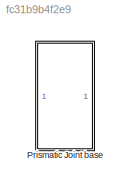
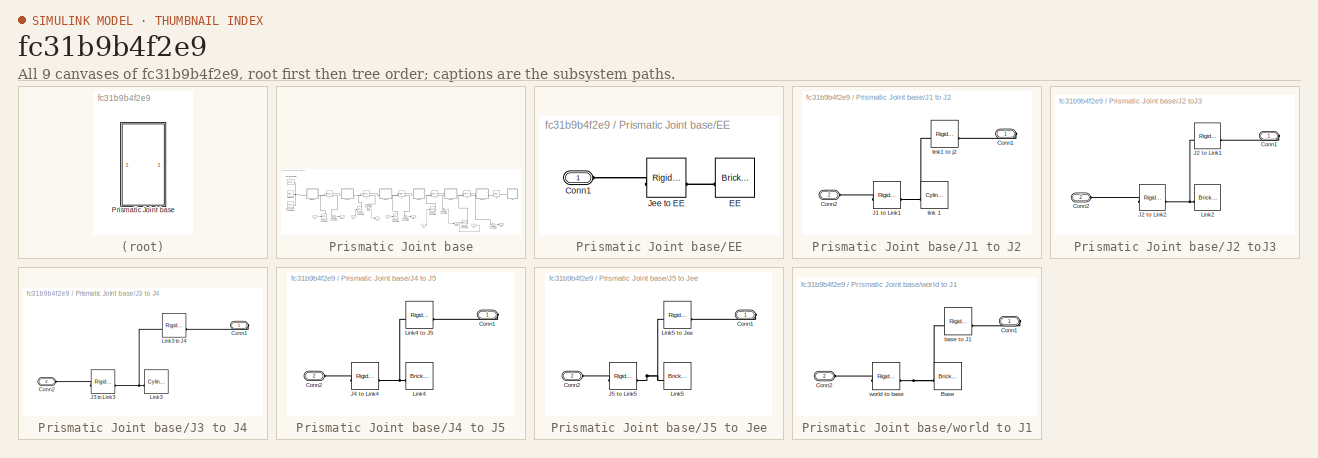
[diagram: thumbnail index - all 9 canvases of the model, root first then tree order]
MODEL slx_fc31b9b4f2e9
KIND model
CONFIG AbsTol = auto
CONFIG EnableMultiTasking = off
CONFIG FixedStep = auto
CONFIG MaxStep = auto
CONFIG MinStep = auto
CONFIG RelTol = 1e-3
CONFIG SampleTimeConstraint = Unconstrained
CONFIG SolverName = VariableStepAuto
CONFIG StartTime = 0.0
CONFIG StopTime = 0
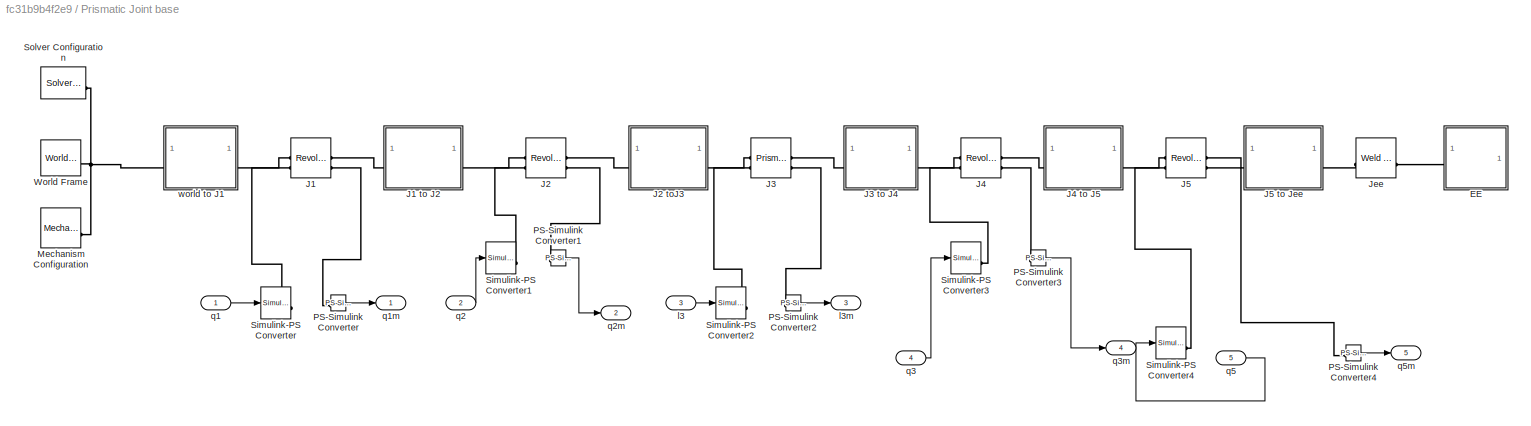
BLOCK [SubSystem] Prismatic Joint base
BLOCK [SubSystem] Prismatic Joint base/EE
BLOCK [PMIOPort] Prismatic Joint base/EE/Conn1
  Side = Left
BLOCK [Reference] Prismatic Joint base/EE/EE  REF=sm_lib/Body Elements/Brick Solid
  NameLocation = top
  SourceBlock = sm_lib/Body Elements/Brick Solid
  SourceType = Brick Solid
BLOCK [Reference] Prismatic Joint base/EE/Jee to EE  REF=sm_lib/Frames and
Transforms/Rigid
Transform
  SourceBlock = sm_lib/Frames and\nTransforms/Rigid\nTransform
  SourceType = Rigid\nTransform
BLOCK [Reference] Prismatic Joint base/J1  REF=sm_lib/Joints/Revolute Joint
  SourceBlock = sm_lib/Joints/Revolute Joint
  SourceType = Revolute Joint
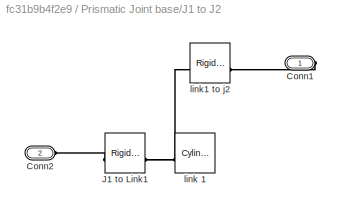
BLOCK [SubSystem] Prismatic Joint base/J1 to J2
BLOCK [PMIOPort] Prismatic Joint base/J1 to J2/Conn1
  Side = Right
BLOCK [PMIOPort] Prismatic Joint base/J1 to J2/Conn2
  Port = 2
  Side = Left
BLOCK [Reference] Prismatic Joint base/J1 to J2/J1 to Link1  REF=sm_lib/Frames and
Transforms/Rigid
Transform
  SourceBlock = sm_lib/Frames and\nTransforms/Rigid\nTransform
  SourceType = Rigid\nTransform
BLOCK [Reference] Prismatic Joint base/J1 to J2/link 1  REF=sm_lib/Body Elements/Cylindrical Solid
  NameLocation = top
  SourceBlock = sm_lib/Body Elements/Cylindrical Solid
  SourceType = Cylindrical Solid
BLOCK [Reference] Prismatic Joint base/J1 to J2/link1 to j2  REF=sm_lib/Frames and
Transforms/Rigid
Transform
  SourceBlock = sm_lib/Frames and\nTransforms/Rigid\nTransform
  SourceType = Rigid\nTransform
BLOCK [Reference] Prismatic Joint base/J2  REF=sm_lib/Joints/Revolute Joint
  SourceBlock = sm_lib/Joints/Revolute Joint
  SourceType = Revolute Joint
BLOCK [SubSystem] Prismatic Joint base/J2 toJ3
BLOCK [PMIOPort] Prismatic Joint base/J2 toJ3/Conn1
  Side = Right
BLOCK [PMIOPort] Prismatic Joint base/J2 toJ3/Conn2
  Port = 2
  Side = Left
BLOCK [Reference] Prismatic Joint base/J2 toJ3/J2 to Link1  REF=sm_lib/Frames and
Transforms/Rigid
Transform
  SourceBlock = sm_lib/Frames and\nTransforms/Rigid\nTransform
  SourceType = Rigid\nTransform
BLOCK [Reference] Prismatic Joint base/J2 toJ3/J2 to Link2  REF=sm_lib/Frames and
Transforms/Rigid
Transform
  SourceBlock = sm_lib/Frames and\nTransforms/Rigid\nTransform
  SourceType = Rigid\nTransform
BLOCK [Reference] Prismatic Joint base/J2 toJ3/Link2  REF=sm_lib/Body Elements/Brick Solid
  NameLocation = top
  SourceBlock = sm_lib/Body Elements/Brick Solid
  SourceType = Brick Solid
BLOCK [Reference] Prismatic Joint base/J3  REF=sm_lib/Joints/Prismatic
Joint
  SourceBlock = sm_lib/Joints/Prismatic\nJoint
  SourceType = Prismatic\nJoint
BLOCK [SubSystem] Prismatic Joint base/J3 to J4
BLOCK [PMIOPort] Prismatic Joint base/J3 to J4/Conn1
  Side = Right
BLOCK [PMIOPort] Prismatic Joint base/J3 to J4/Conn2
  Port = 2
  Side = Left
BLOCK [Reference] Prismatic Joint base/J3 to J4/J3 to Link3  REF=sm_lib/Frames and
Transforms/Rigid
Transform
  SourceBlock = sm_lib/Frames and\nTransforms/Rigid\nTransform
  SourceType = Rigid\nTransform
BLOCK [Reference] Prismatic Joint base/J3 to J4/Link3  REF=sm_lib/Body Elements/Cylindrical Solid
  NameLocation = top
  SourceBlock = sm_lib/Body Elements/Cylindrical Solid
  SourceType = Cylindrical Solid
BLOCK [Reference] Prismatic Joint base/J3 to J4/Link3 to J4  REF=sm_lib/Frames and
Transforms/Rigid
Transform
  SourceBlock = sm_lib/Frames and\nTransforms/Rigid\nTransform
  SourceType = Rigid\nTransform
BLOCK [Reference] Prismatic Joint base/J4  REF=sm_lib/Joints/Revolute Joint
  SourceBlock = sm_lib/Joints/Revolute Joint
  SourceType = Revolute Joint
BLOCK [SubSystem] Prismatic Joint base/J4 to J5
BLOCK [PMIOPort] Prismatic Joint base/J4 to J5/Conn1
  Side = Right
BLOCK [PMIOPort] Prismatic Joint base/J4 to J5/Conn2
  Port = 2
  Side = Left
BLOCK [Reference] Prismatic Joint base/J4 to J5/J4 to Link4  REF=sm_lib/Frames and
Transforms/Rigid
Transform
  SourceBlock = sm_lib/Frames and\nTransforms/Rigid\nTransform
  SourceType = Rigid\nTransform
BLOCK [Reference] Prismatic Joint base/J4 to J5/Link4  REF=sm_lib/Body Elements/Brick Solid
  NameLocation = top
  SourceBlock = sm_lib/Body Elements/Brick Solid
  SourceType = Brick Solid
BLOCK [Reference] Prismatic Joint base/J4 to J5/Link4 to J5  REF=sm_lib/Frames and
Transforms/Rigid
Transform
  SourceBlock = sm_lib/Frames and\nTransforms/Rigid\nTransform
  SourceType = Rigid\nTransform
BLOCK [Reference] Prismatic Joint base/J5  REF=sm_lib/Joints/Revolute Joint
  SourceBlock = sm_lib/Joints/Revolute Joint
  SourceType = Revolute Joint
BLOCK [SubSystem] Prismatic Joint base/J5 to Jee
BLOCK [PMIOPort] Prismatic Joint base/J5 to Jee/Conn1
  Side = Right
BLOCK [PMIOPort] Prismatic Joint base/J5 to Jee/Conn2
  Port = 2
  Side = Left
BLOCK [Reference] Prismatic Joint base/J5 to Jee/J5 to Link5  REF=sm_lib/Frames and
Transforms/Rigid
Transform
  SourceBlock = sm_lib/Frames and\nTransforms/Rigid\nTransform
  SourceType = Rigid\nTransform
BLOCK [Reference] Prismatic Joint base/J5 to Jee/Link5  REF=sm_lib/Body Elements/Brick Solid
  NameLocation = top
  SourceBlock = sm_lib/Body Elements/Brick Solid
  SourceType = Brick Solid
BLOCK [Reference] Prismatic Joint base/J5 to Jee/Link5 to Jee  REF=sm_lib/Frames and
Transforms/Rigid
Transform
  SourceBlock = sm_lib/Frames and\nTransforms/Rigid\nTransform
  SourceType = Rigid\nTransform
BLOCK [Reference] Prismatic Joint base/Jee  REF=sm_lib/Joints/Weld Joint
  SourceBlock = sm_lib/Joints/Weld Joint
  SourceType = Weld Joint
BLOCK [Reference] Prismatic Joint base/Mechanism Configuration  REF=sm_lib/Utilities/Mechanism
Configuration
  SourceBlock = sm_lib/Utilities/Mechanism\nConfiguration
  SourceType = Mechanism\nConfiguration
BLOCK [Reference] Prismatic Joint base/PS-Simulink Converter  REF=nesl_utility/PS-Simulink
Converter
  SourceBlock = nesl_utility/PS-Simulink\nConverter
  SourceType = PS-Simulink\nConverter
BLOCK [Reference] Prismatic Joint base/PS-Simulink Converter1  REF=nesl_utility/PS-Simulink
Converter
  SourceBlock = nesl_utility/PS-Simulink\nConverter
  SourceType = PS-Simulink\nConverter
BLOCK [Reference] Prismatic Joint base/PS-Simulink Converter2  REF=nesl_utility/PS-Simulink
Converter
  SourceBlock = nesl_utility/PS-Simulink\nConverter
  SourceType = PS-Simulink\nConverter
BLOCK [Reference] Prismatic Joint base/PS-Simulink Converter3  REF=nesl_utility/PS-Simulink
Converter
  SourceBlock = nesl_utility/PS-Simulink\nConverter
  SourceType = PS-Simulink\nConverter
BLOCK [Reference] Prismatic Joint base/PS-Simulink Converter4  REF=nesl_utility/PS-Simulink
Converter
  SourceBlock = nesl_utility/PS-Simulink\nConverter
  SourceType = PS-Simulink\nConverter
BLOCK [Reference] Prismatic Joint base/Simulink-PS Converter  REF=nesl_utility/Simulink-PS
Converter
  SourceBlock = nesl_utility/Simulink-PS\nConverter
  SourceType = Simulink-PS\nConverter
BLOCK [Reference] Prismatic Joint base/Simulink-PS Converter1  REF=nesl_utility/Simulink-PS
Converter
  SourceBlock = nesl_utility/Simulink-PS\nConverter
  SourceType = Simulink-PS\nConverter
BLOCK [Reference] Prismatic Joint base/Simulink-PS Converter2  REF=nesl_utility/Simulink-PS
Converter
  SourceBlock = nesl_utility/Simulink-PS\nConverter
  SourceType = Simulink-PS\nConverter
BLOCK [Reference] Prismatic Joint base/Simulink-PS Converter3  REF=nesl_utility/Simulink-PS
Converter
  SourceBlock = nesl_utility/Simulink-PS\nConverter
  SourceType = Simulink-PS\nConverter
BLOCK [Reference] Prismatic Joint base/Simulink-PS Converter4  REF=nesl_utility/Simulink-PS
Converter
  SourceBlock = nesl_utility/Simulink-PS\nConverter
  SourceType = Simulink-PS\nConverter
BLOCK [Reference] Prismatic Joint base/Solver Configuration  REF=nesl_utility/Solver
Configuration
  SourceBlock = nesl_utility/Solver\nConfiguration
  SourceType = Solver\nConfiguration
BLOCK [Reference] Prismatic Joint base/World Frame  REF=sm_lib/Frames and
Transforms/World Frame
  SourceBlock = sm_lib/Frames and\nTransforms/World Frame
  SourceType = World Frame
BLOCK [Inport] Prismatic Joint base/l3
  Port = 3
  Unit = m
BLOCK [Outport] Prismatic Joint base/l3m
  Port = 3
BLOCK [Inport] Prismatic Joint base/q1
  Unit = rad
BLOCK [Outport] Prismatic Joint base/q1m
BLOCK [Inport] Prismatic Joint base/q2
  Port = 2
  Unit = rad
BLOCK [Outport] Prismatic Joint base/q2m
  Port = 2
BLOCK [Inport] Prismatic Joint base/q3
  Port = 4
  Unit = rad
BLOCK [Outport] Prismatic Joint base/q3m
  Port = 4
BLOCK [Inport] Prismatic Joint base/q5
  Port = 5
  Unit = rad
BLOCK [Outport] Prismatic Joint base/q5m
  Port = 5
BLOCK [SubSystem] Prismatic Joint base/world to J1
BLOCK [Reference] Prismatic Joint base/world to J1/Base  REF=sm_lib/Body Elements/Brick Solid
  NameLocation = top
  SourceBlock = sm_lib/Body Elements/Brick Solid
  SourceType = Brick Solid
BLOCK [PMIOPort] Prismatic Joint base/world to J1/Conn1
  Side = Right
BLOCK [PMIOPort] Prismatic Joint base/world to J1/Conn2
  Port = 2
  Side = Left
BLOCK [Reference] Prismatic Joint base/world to J1/base to J1  REF=sm_lib/Frames and
Transforms/Rigid
Transform
  SourceBlock = sm_lib/Frames and\nTransforms/Rigid\nTransform
  SourceType = Rigid\nTransform
BLOCK [Reference] Prismatic Joint base/world to J1/world to base  REF=sm_lib/Frames and
Transforms/Rigid
Transform
  SourceBlock = sm_lib/Frames and\nTransforms/Rigid\nTransform
  SourceType = Rigid\nTransform
LINE Prismatic Joint base/PS-Simulink Converter1:1 -> Prismatic Joint base/q2m:1
LINE Prismatic Joint base/PS-Simulink Converter2:1 -> Prismatic Joint base/l3m:1
LINE Prismatic Joint base/PS-Simulink Converter3:1 -> Prismatic Joint base/q3m:1
LINE Prismatic Joint base/PS-Simulink Converter4:1 -> Prismatic Joint base/q5m:1
LINE Prismatic Joint base/PS-Simulink Converter:1 -> Prismatic Joint base/q1m:1
LINE Prismatic Joint base/l3:1 -> Prismatic Joint base/Simulink-PS Converter2:1
LINE Prismatic Joint base/q1:1 -> Prismatic Joint base/Simulink-PS Converter:1
LINE Prismatic Joint base/q2:1 -> Prismatic Joint base/Simulink-PS Converter1:1
LINE Prismatic Joint base/q3:1 -> Prismatic Joint base/Simulink-PS Converter3:1
LINE Prismatic Joint base/q5:1 -> Prismatic Joint base/Simulink-PS Converter4:1
PLINE Prismatic Joint base/EE/Conn1:RConn1 -- Prismatic Joint base/EE/Jee to EE:LConn1
PLINE Prismatic Joint base/EE/EE:RConn1 -- Prismatic Joint base/EE/Jee to EE:RConn1
PLINE Prismatic Joint base/EE:LConn1 -- Prismatic Joint base/Jee:RConn1
PLINE Prismatic Joint base/J1 to J2/Conn1:RConn1 -- Prismatic Joint base/J1 to J2/link1 to j2:RConn1
PLINE Prismatic Joint base/J1 to J2/Conn2:RConn1 -- Prismatic Joint base/J1 to J2/J1 to Link1:LConn1
PNET net1: Prismatic Joint base/J1 to J2/J1 to Link1:RConn1 -- Prismatic Joint base/J1 to J2/link 1:RConn1 -- Prismatic Joint base/J1 to J2/link1 to j2:LConn1
PLINE Prismatic Joint base/J1 to J2:LConn1 -- Prismatic Joint base/J1:RConn1
PLINE Prismatic Joint base/J1 to J2:RConn1 -- Prismatic Joint base/J2:LConn1
PLINE Prismatic Joint base/J1:LConn1 -- Prismatic Joint base/world to J1:RConn1
PLINE Prismatic Joint base/J1:LConn2 -- Prismatic Joint base/Simulink-PS Converter:RConn1
PLINE Prismatic Joint base/J1:RConn2 -- Prismatic Joint base/PS-Simulink Converter:LConn1
PLINE Prismatic Joint base/J2 toJ3/Conn1:RConn1 -- Prismatic Joint base/J2 toJ3/J2 to Link1:RConn1
PLINE Prismatic Joint base/J2 toJ3/Conn2:RConn1 -- Prismatic Joint base/J2 toJ3/J2 to Link2:LConn1
PNET net2: Prismatic Joint base/J2 toJ3/J2 to Link1:LConn1 -- Prismatic Joint base/J2 toJ3/J2 to Link2:RConn1 -- Prismatic Joint base/J2 toJ3/Link2:RConn1
PLINE Prismatic Joint base/J2 toJ3:LConn1 -- Prismatic Joint base/J2:RConn1
PLINE Prismatic Joint base/J2 toJ3:RConn1 -- Prismatic Joint base/J3:LConn1
PLINE Prismatic Joint base/J2:LConn2 -- Prismatic Joint base/Simulink-PS Converter1:RConn1
PLINE Prismatic Joint base/J2:RConn2 -- Prismatic Joint base/PS-Simulink Converter1:LConn1
PLINE Prismatic Joint base/J3 to J4/Conn1:RConn1 -- Prismatic Joint base/J3 to J4/Link3 to J4:RConn1
PLINE Prismatic Joint base/J3 to J4/Conn2:RConn1 -- Prismatic Joint base/J3 to J4/J3 to Link3:LConn1
PNET net3: Prismatic Joint base/J3 to J4/J3 to Link3:RConn1 -- Prismatic Joint base/J3 to J4/Link3 to J4:LConn1 -- Prismatic Joint base/J3 to J4/Link3:RConn1
PLINE Prismatic Joint base/J3 to J4:LConn1 -- Prismatic Joint base/J3:RConn1
PLINE Prismatic Joint base/J3 to J4:RConn1 -- Prismatic Joint base/J4:LConn1
PLINE Prismatic Joint base/J3:LConn2 -- Prismatic Joint base/Simulink-PS Converter2:RConn1
PLINE Prismatic Joint base/J3:RConn2 -- Prismatic Joint base/PS-Simulink Converter2:LConn1
PLINE Prismatic Joint base/J4 to J5/Conn1:RConn1 -- Prismatic Joint base/J4 to J5/Link4 to J5:RConn1
PLINE Prismatic Joint base/J4 to J5/Conn2:RConn1 -- Prismatic Joint base/J4 to J5/J4 to Link4:LConn1
PNET net4: Prismatic Joint base/J4 to J5/J4 to Link4:RConn1 -- Prismatic Joint base/J4 to J5/Link4 to J5:LConn1 -- Prismatic Joint base/J4 to J5/Link4:RConn1
PLINE Prismatic Joint base/J4 to J5:LConn1 -- Prismatic Joint base/J4:RConn1
PLINE Prismatic Joint base/J4 to J5:RConn1 -- Prismatic Joint base/J5:LConn1
PLINE Prismatic Joint base/J4:LConn2 -- Prismatic Joint base/Simulink-PS Converter3:RConn1
PLINE Prismatic Joint base/J4:RConn2 -- Prismatic Joint base/PS-Simulink Converter3:LConn1
PLINE Prismatic Joint base/J5 to Jee/Conn1:RConn1 -- Prismatic Joint base/J5 to Jee/Link5 to Jee:RConn1
PLINE Prismatic Joint base/J5 to Jee/Conn2:RConn1 -- Prismatic Joint base/J5 to Jee/J5 to Link5:LConn1
PNET net5: Prismatic Joint base/J5 to Jee/J5 to Link5:RConn1 -- Prismatic Joint base/J5 to Jee/Link5 to Jee:LConn1 -- Prismatic Joint base/J5 to Jee/Link5:RConn1
PLINE Prismatic Joint base/J5 to Jee:LConn1 -- Prismatic Joint base/J5:RConn1
PLINE Prismatic Joint base/J5 to Jee:RConn1 -- Prismatic Joint base/Jee:LConn1
PLINE Prismatic Joint base/J5:LConn2 -- Prismatic Joint base/Simulink-PS Converter4:RConn1
PLINE Prismatic Joint base/J5:RConn2 -- Prismatic Joint base/PS-Simulink Converter4:LConn1
PNET net6: Prismatic Joint base/Mechanism Configuration:RConn1 -- Prismatic Joint base/Solver Configuration:RConn1 -- Prismatic Joint base/World Frame:RConn1 -- Prismatic Joint base/world to J1:LConn1
PNET net7: Prismatic Joint base/world to J1/Base:RConn1 -- Prismatic Joint base/world to J1/base to J1:LConn1 -- Prismatic Joint base/world to J1/world to base:RConn1
PLINE Prismatic Joint base/world to J1/Conn1:RConn1 -- Prismatic Joint base/world to J1/base to J1:RConn1
PLINE Prismatic Joint base/world to J1/Conn2:RConn1 -- Prismatic Joint base/world to J1/world to base:LConn1
note: PNET lines group multi-terminal physical nets as a canonical sorted terminal list (undirected conserving connections); 2-terminal nets keep the pairwise PLINE form
